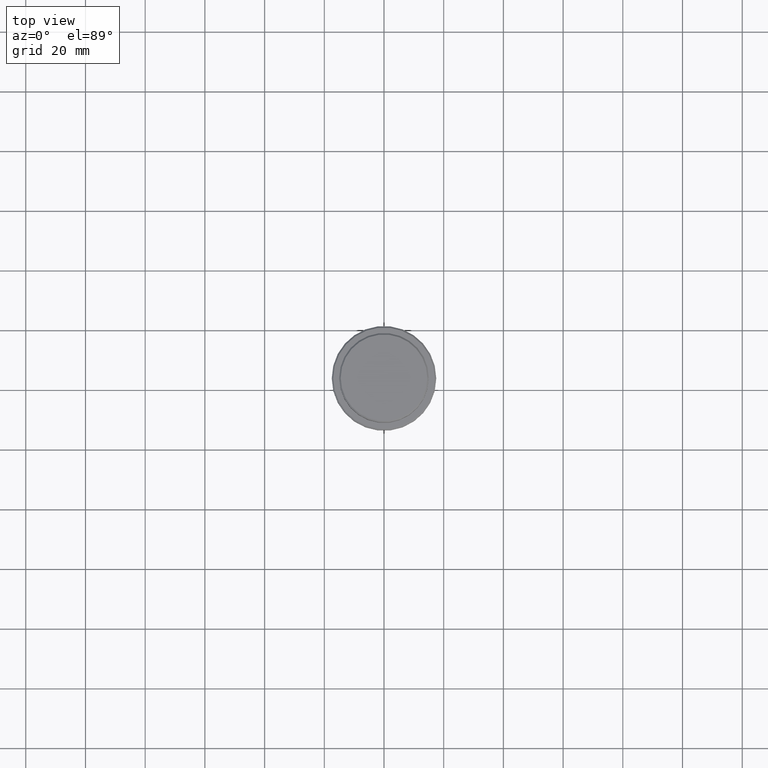
[diagram: clean part render]
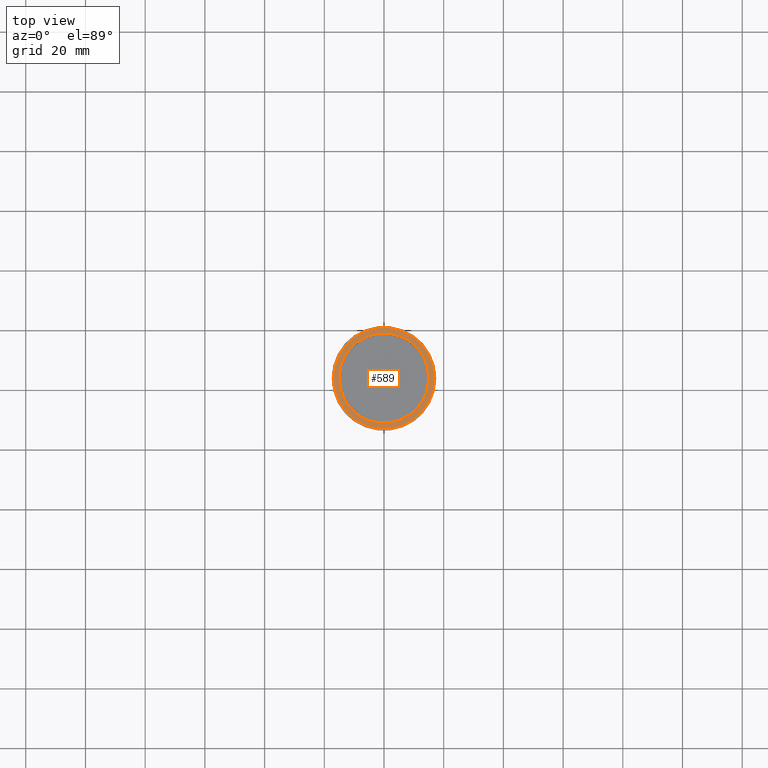
[diagram: same view with one face highlighted and labeled with its STEP entity id]
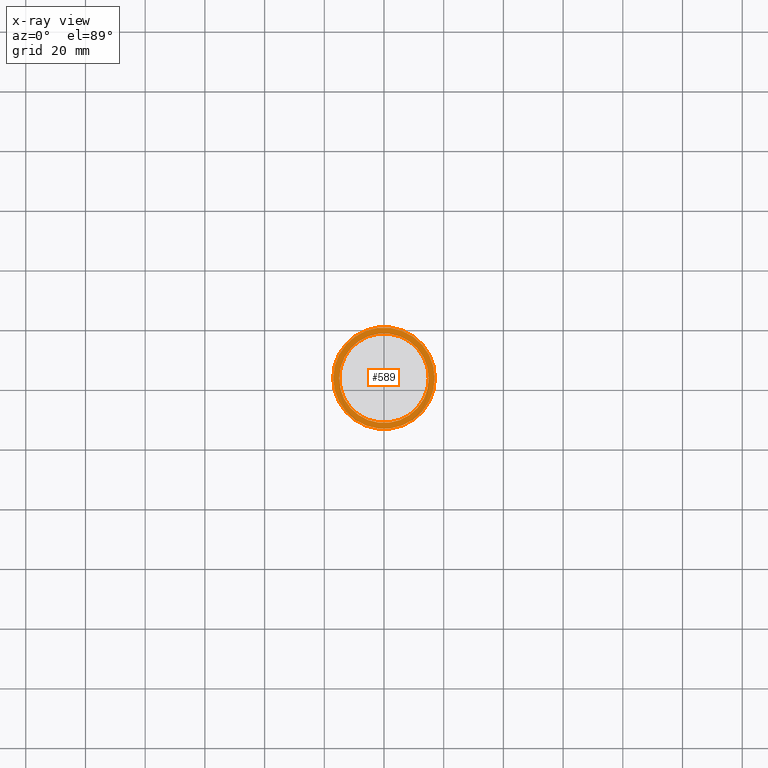
[diagram: x-ray of the same camera — body ghosted, the highlighted face saturated]
A machine part, top view. The second image highlights one B-rep face of the part: STEP entity #589.
The next image is the same camera in x-ray: the body ghosted, the highlighted face saturated — about 0% of this face is hidden behind the body in this view.
In plain terms, the highlighted planar face has unit normal (0, -0, 1).
Its self-contained STEP definition (entity closure, byte-faithful):
#116 = ORIENTED_EDGE ( 'NONE', *, *, #355, .T. ) ;
#161 = DIRECTION ( 'NONE',  ( 1.000000000000000000, 0.000000000000000000, 0.000000000000000000 ) ) ;
#167 = CARTESIAN_POINT ( 'NONE',  ( 0.000000000000000000, 0.000000000000000000, -9.000000000000001776 ) ) ;
#199 = AXIS2_PLACEMENT_3D ( 'NONE', #832, #839, #161 ) ;
#262 = VERTEX_POINT ( 'NONE', #1205 ) ;
#279 = DIRECTION ( 'NONE',  ( 1.000000000000000000, 0.000000000000000000, 0.000000000000000000 ) ) ;
#328 = DIRECTION ( 'NONE',  ( 0.000000000000000000, -0.000000000000000000, 1.000000000000000000 ) ) ;
#347 = EDGE_LOOP ( 'NONE', ( #657, #857 ) ) ;
#355 = EDGE_CURVE ( 'NONE', #908, #377, #929, .T. ) ;
#377 = VERTEX_POINT ( 'NONE', #1028 ) ;
#402 = EDGE_CURVE ( 'NONE', #377, #908, #1016, .T. ) ;
#417 = FACE_BOUND ( 'NONE', #1158, .T. ) ;
#457 = AXIS2_PLACEMENT_3D ( 'NONE', #1140, #489, #1027 ) ;
#489 = DIRECTION ( 'NONE',  ( -0.000000000000000000, -0.000000000000000000, 1.000000000000000000 ) ) ;
#507 = AXIS2_PLACEMENT_3D ( 'NONE', #774, #1329, #1007 ) ;
#545 = CARTESIAN_POINT ( 'NONE',  ( 0.000000000000000000, 14.49999999999999467, -9.000000000000001776 ) ) ;
#579 = AXIS2_PLACEMENT_3D ( 'NONE', #167, #613, #279 ) ;
#589 = ADVANCED_FACE ( 'NONE', ( #769, #417 ), #755, .T. ) ;
#613 = DIRECTION ( 'NONE',  ( 0.000000000000000000, 0.000000000000000000, -1.000000000000000000 ) ) ;
#615 = VERTEX_POINT ( 'NONE', #775 ) ;
#657 = ORIENTED_EDGE ( 'NONE', *, *, #1165, .T. ) ;
#692 = CIRCLE ( 'NONE', #457, 17.00000000000001421 ) ;
#755 = PLANE ( 'NONE',  #903 ) ;
#760 = DIRECTION ( 'NONE',  ( 1.000000000000000000, 0.000000000000000000, 0.000000000000000000 ) ) ;
#769 = FACE_OUTER_BOUND ( 'NONE', #347, .T. ) ;
#774 = CARTESIAN_POINT ( 'NONE',  ( 0.000000000000000000, 0.000000000000000000, -9.000000000000001776 ) ) ;
#775 = CARTESIAN_POINT ( 'NONE',  ( 17.00000000000001421, 2.112515728529185250E-15, -9.000000000000001776 ) ) ;
#785 = CIRCLE ( 'NONE', #507, 17.00000000000001421 ) ;
#832 = CARTESIAN_POINT ( 'NONE',  ( 0.000000000000000000, 0.000000000000000000, -9.000000000000001776 ) ) ;
#839 = DIRECTION ( 'NONE',  ( 0.000000000000000000, 0.000000000000000000, -1.000000000000000000 ) ) ;
#857 = ORIENTED_EDGE ( 'NONE', *, *, #940, .T. ) ;
#903 = AXIS2_PLACEMENT_3D ( 'NONE', #545, #328, #760 ) ;
#908 = VERTEX_POINT ( 'NONE', #1258 ) ;
#929 = CIRCLE ( 'NONE', #579, 14.99999999999999467 ) ;
#940 = EDGE_CURVE ( 'NONE', #615, #262, #692, .T. ) ;
#1007 = DIRECTION ( 'NONE',  ( 1.000000000000000000, 0.000000000000000000, 0.000000000000000000 ) ) ;
#1016 = CIRCLE ( 'NONE', #199, 14.99999999999999467 ) ;
#1027 = DIRECTION ( 'NONE',  ( 1.000000000000000000, 0.000000000000000000, 0.000000000000000000 ) ) ;
#1028 = CARTESIAN_POINT ( 'NONE',  ( -14.99999999999999467, 1.836970198721029194E-15, -9.000000000000001776 ) ) ;
#1140 = CARTESIAN_POINT ( 'NONE',  ( 0.000000000000000000, 0.000000000000000000, -9.000000000000001776 ) ) ;
#1158 = EDGE_LOOP ( 'NONE', ( #116, #1257 ) ) ;
#1165 = EDGE_CURVE ( 'NONE', #262, #615, #785, .T. ) ;
#1205 = CARTESIAN_POINT ( 'NONE',  ( -17.00000000000001421, 0.000000000000000000, -9.000000000000001776 ) ) ;
#1257 = ORIENTED_EDGE ( 'NONE', *, *, #402, .T. ) ;
#1258 = CARTESIAN_POINT ( 'NONE',  ( 14.99999999999999467, 0.000000000000000000, -9.000000000000001776 ) ) ;
#1329 = DIRECTION ( 'NONE',  ( -0.000000000000000000, -0.000000000000000000, 1.000000000000000000 ) ) ;